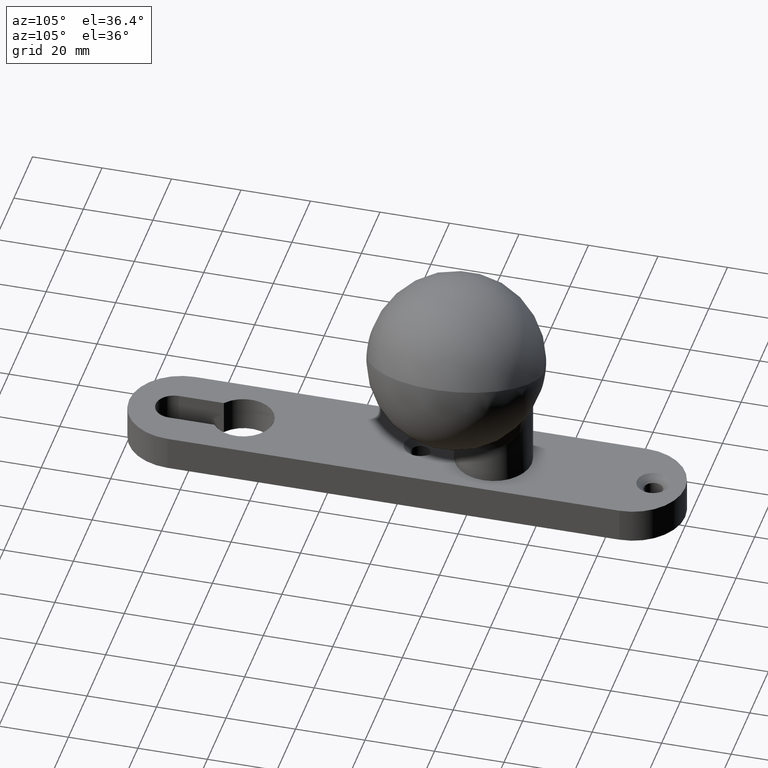
[diagram: clean part render]
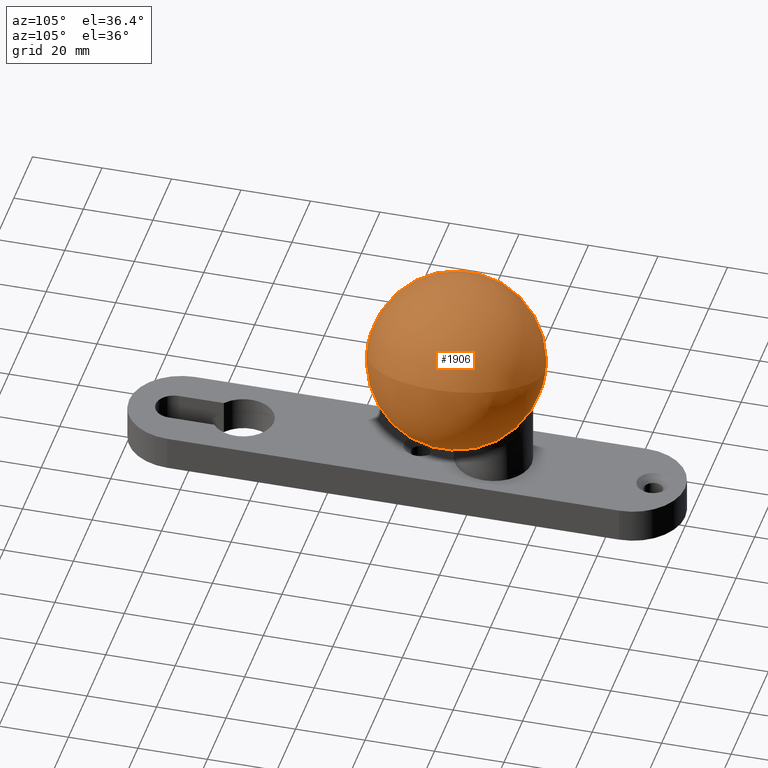
[diagram: same view with one face highlighted and labeled with its STEP entity id]
A machine part, auxiliary view. The second image highlights one B-rep face of the part: STEP entity #1906.
In plain terms, the highlighted spherical surface has radius 25 mm.
Its self-contained STEP definition (entity closure, byte-faithful):
#10 = CARTESIAN_POINT ( 'NONE',  ( 25.01053706963973156, 0.000000000000000000, 46.01795568682297244 ) ) ;
#1107 = DIRECTION ( 'NONE',  ( 0.000000000000000000, 1.000000000000000000, -0.000000000000000000 ) ) ;
#1191 = FACE_OUTER_BOUND ( 'NONE', #11445, .T. ) ;
#1236 = DIRECTION ( 'NONE',  ( -0.7293938085292274165, 0.000000000000000000, 0.6840940520712257555 ) ) ;
#1906 = ADVANCED_FACE ( 'NONE', ( #1191 ), #8717, .T. ) ;
#2065 = VERTEX_POINT ( 'NONE', #11323 ) ;
#3931 = DIRECTION ( 'NONE',  ( 0.6840940520712255335, -0.000000000000000000, 0.7293938085292275275 ) ) ;
#3948 = CIRCLE ( 'NONE', #6094, 12.03703703703703987 ) ;
#4250 = AXIS2_PLACEMENT_3D ( 'NONE', #10992, #1107, #1236 ) ;
#6094 = AXIS2_PLACEMENT_3D ( 'NONE', #10, #3931, #6737 ) ;
#6737 = DIRECTION ( 'NONE',  ( 0.7293938085292274165, 0.000000000000000000, -0.6840940520712256445 ) ) ;
#7842 = EDGE_CURVE ( 'NONE', #2065, #2065, #3948, .T. ) ;
#8717 = SPHERICAL_SURFACE ( 'NONE', #4250, 25.00000000000000000 ) ;
#9753 = ORIENTED_EDGE ( 'NONE', *, *, #7842, .T. ) ;
#10992 = CARTESIAN_POINT ( 'NONE',  ( 40.00000000000000711, 0.000000000000000000, 62.00000000000000000 ) ) ;
#11323 = CARTESIAN_POINT ( 'NONE',  ( 33.79027735749154715, 0.000000000000000000, 37.78349024522488264 ) ) ;
#11445 = EDGE_LOOP ( 'NONE', ( #9753 ) ) ;